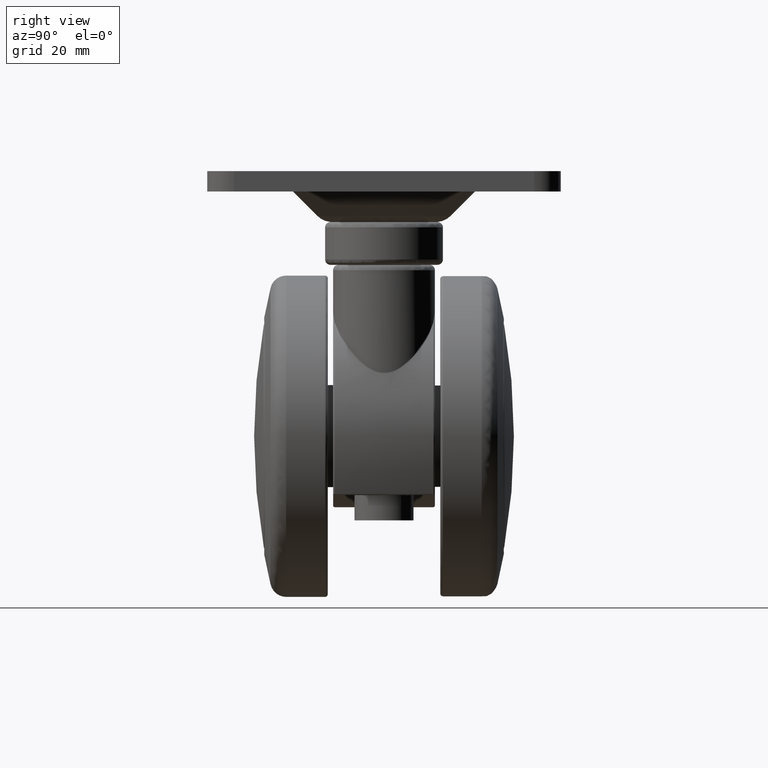
[diagram: clean part render]
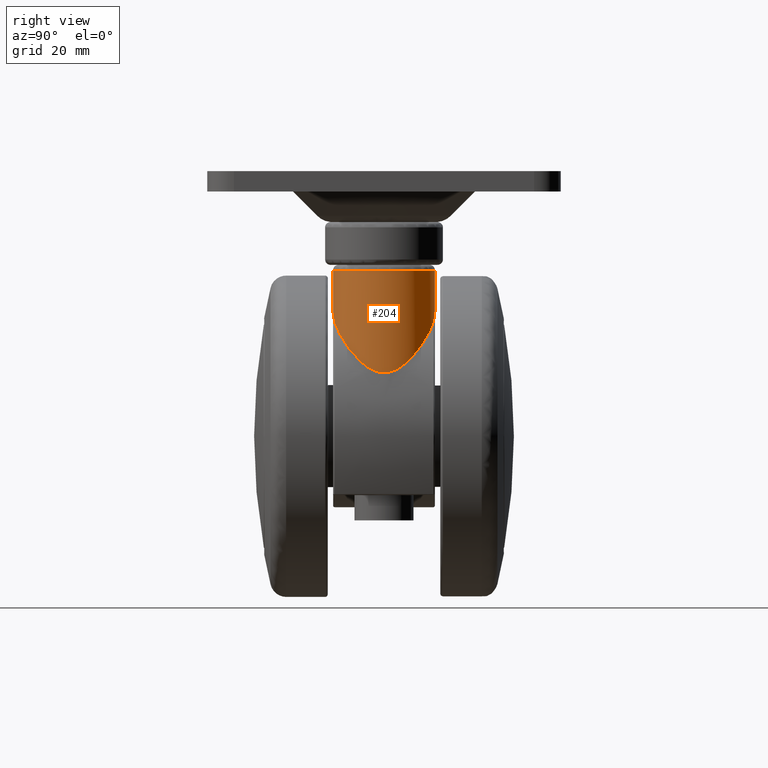
[diagram: same view with one face highlighted and labeled with its STEP entity id]
A machine part, right view. The second image highlights one B-rep face of the part: STEP entity #204.
In plain terms, the highlighted cylindrical surface (partial cylindrical patch) has radius 9.5 mm, axis along (-0, -0, -1).
Its self-contained STEP definition (entity closure, byte-faithful):
#204=ADVANCED_FACE('',(#518),#517,.T.);
#517=CYLINDRICAL_SURFACE('',#2778,9.50000000000E+00);
#518=FACE_OUTER_BOUND('',#2779,.T.);
#2775=CARTESIAN_POINT('',(1.70000000000E+01,-2.56500154905E-14,2.70616827011E+01));
#2776=DIRECTION('',(-0.00000000000E+00,-9.13012355777E-17,-1.00000000000E+00));
#2777=DIRECTION('',(-9.99961923064E-01,-8.72653549837E-03,7.96743473314E-19));
#2778=AXIS2_PLACEMENT_3D('',#2775,#2776,#2777);
#2779=EDGE_LOOP('',(#7466,#7467,#7468,#7469,#7470,#7471,#7472,#7473,#7474,#7475,#7476,#7477));
#7466=ORIENTED_EDGE('',*,*,#8530,.F.);
#7467=ORIENTED_EDGE('',*,*,#8531,.F.);
#7468=ORIENTED_EDGE('',*,*,#8532,.T.);
#7469=ORIENTED_EDGE('',*,*,#8533,.F.);
#7470=ORIENTED_EDGE('',*,*,#8534,.F.);
#7471=ORIENTED_EDGE('',*,*,#8535,.T.);
#7472=ORIENTED_EDGE('',*,*,#8536,.T.);
#7473=ORIENTED_EDGE('',*,*,#8537,.T.);
#7474=ORIENTED_EDGE('',*,*,#8538,.T.);
#7475=ORIENTED_EDGE('',*,*,#8539,.T.);
#7476=ORIENTED_EDGE('',*,*,#8540,.T.);
#7477=ORIENTED_EDGE('',*,*,#8541,.T.);
#8530=EDGE_CURVE('',#9263,#9416,#9417,.T.);
#8531=EDGE_CURVE('',#9423,#9263,#9424,.T.);
#8532=EDGE_CURVE('',#9423,#9430,#9431,.T.);
#8533=EDGE_CURVE('',#9326,#9430,#9437,.T.);
#8534=EDGE_CURVE('',#9443,#9326,#9444,.T.);
#8535=EDGE_CURVE('',#9443,#9450,#9451,.T.);
#8536=EDGE_CURVE('',#9450,#9457,#9458,.T.);
#8537=EDGE_CURVE('',#9457,#9464,#9465,.T.);
#8538=EDGE_CURVE('',#9464,#9471,#9472,.T.);
#8539=EDGE_CURVE('',#9471,#9478,#9479,.T.);
#8540=EDGE_CURVE('',#9478,#9485,#9486,.T.);
#8541=EDGE_CURVE('',#9485,#9416,#9492,.T.);
#9263=VERTEX_POINT('',#12734);
#9326=VERTEX_POINT('',#12780);
#9416=VERTEX_POINT('',#12843);
#9417=(BOUNDED_CURVE() B_SPLINE_CURVE(3,(#12844,#12845,#12846,#12847,#12848,#12849),.UNSPECIFIED.,.F.,.F.) B_SPLINE_CURVE_WITH_KNOTS((4,2,4),(1.85410191495E-02,1.99325494595E-02,2.13240797695E-02),.UNSPECIFIED.) CURVE() GEOMETRIC_REPRESENTATION_ITEM() RATIONAL_B_SPLINE_CURVE((1.00000000000E+00,1.00000000000E+00,1.00000000000E+00,1.00000000000E+00,1.00000000000E+00,1.00000000000E+00)) REPRESENTATION_ITEM('') );
#9423=VERTEX_POINT('',#12850);
#9424=(BOUNDED_CURVE() B_SPLINE_CURVE(3,(#12851,#12852,#12853,#12854,#12855,#12856),.UNSPECIFIED.,.F.,.F.) B_SPLINE_CURVE_WITH_KNOTS((4,2,4),(1.55602120176E-02,1.70506155835E-02,1.85410191495E-02),.UNSPECIFIED.) CURVE() GEOMETRIC_REPRESENTATION_ITEM() RATIONAL_B_SPLINE_CURVE((1.00000000000E+00,1.00000000000E+00,1.00000000000E+00,1.00000000000E+00,1.00000000000E+00,1.00000000000E+00)) REPRESENTATION_ITEM('') );
#9430=VERTEX_POINT('',#12857);
#9431=(BOUNDED_CURVE() B_SPLINE_CURVE(3,(#12858,#12859,#12860,#12861,#12862,#12863,#12864,#12865,#12866,#12867,#12868,#12869,#12870,#12871,#12872),.UNSPECIFIED.,.F.,.F.) B_SPLINE_CURVE_WITH_KNOTS((4,1,1,1,1,1,1,1,1,1,1,1,4),(0.00000000000E+00,1.83184714585E-01,2.44321908253E-01,3.35938578992E-01,4.54900953758E-01,4.84873936553E-01,5.44404035685E-01,5.74397896732E-01,6.04410284143E-01,6.64394900084E-01,7.55920894781E-01,8.17000712333E-01,1.00000000000E+00),.UNSPECIFIED.) CURVE() GEOMETRIC_REPRESENTATION_ITEM() RATIONAL_B_SPLINE_CURVE((1.00000000000E+00,1.00000000000E+00,1.00000000000E+00,1.00000000000E+00,1.00000000000E+00,1.00000000000E+00,1.00000000000E+00,1.00000000000E+00,1.00000000000E+00,1.00000000000E+00,1.00000000000E+00,1.00000000000E+00,1.00000000000E+00,1.00000000000E+00,1.00000000000E+00)) REPRESENTATION_ITEM('') );
#9437=(BOUNDED_CURVE() B_SPLINE_CURVE(3,(#12873,#12874,#12875,#12876,#12877,#12878),.UNSPECIFIED.,.F.,.F.) B_SPLINE_CURVE_WITH_KNOTS((4,2,4),(5.04585628728E-02,5.19390826639E-02,5.34196024549E-02),.UNSPECIFIED.) CURVE() GEOMETRIC_REPRESENTATION_ITEM() RATIONAL_B_SPLINE_CURVE((1.00000000000E+00,1.00000000000E+00,1.00000000000E+00,1.00000000000E+00,1.00000000000E+00,1.00000000000E+00)) REPRESENTATION_ITEM('') );
#9443=VERTEX_POINT('',#12879);
#9444=(BOUNDED_CURVE() B_SPLINE_CURVE(3,(#12880,#12881,#12882,#12883,#12884,#12885),.UNSPECIFIED.,.F.,.F.) B_SPLINE_CURVE_WITH_KNOTS((4,2,4),(4.76830021997E-02,4.90707825363E-02,5.04585628728E-02),.UNSPECIFIED.) CURVE() GEOMETRIC_REPRESENTATION_ITEM() RATIONAL_B_SPLINE_CURVE((1.00000000000E+00,1.00000000000E+00,1.00000000000E+00,1.00000000000E+00,1.00000000000E+00,1.00000000000E+00)) REPRESENTATION_ITEM('') );
#9450=VERTEX_POINT('',#12886);
#9451=(BOUNDED_CURVE() B_SPLINE_CURVE(3,(#12887,#12888,#12889,#12890,#12891,#12892,#12893,#12894,#12895,#12896,#12897,#12898,#12899,#12900,#12901,#12902,#12903,#12904,#12905,#12906,#12907,#12908,#12909,#12910,#12911,#12912,#12913,#12914,#12915,#12916,#12917,#12918,#12919,#12920,#12921,#12922,#12923,#12924),.UNSPECIFIED.,.F.,.F.) B_SPLINE_CURVE_WITH_KNOTS((4,2,2,1,1,1,1,2,2,2,1,1,1,1,1,2,2,2,1,1,1,1,1,2,2,4),(0.00000000000E+00,1.25000000000E-01,1.87500000000E-01,2.18750000000E-01,2.34375000000E-01,2.42187500000E-01,2.46093750000E-01,2.48046875000E-01,2.50000000000E-01,3.75000000000E-01,4.37500000000E-01,4.68750000000E-01,4.84375000000E-01,4.92187500000E-01,4.96093750000E-01,4.98046875000E-01,5.00000000000E-01,6.25000000000E-01,6.87500000000E-01,7.18750000000E-01,7.34375000000E-01,7.42187500000E-01,7.46093750000E-01,7.48046875000E-01,7.50000000000E-01,1.00000000000E+00),.UNSPECIFIED.) CURVE() GEOMETRIC_REPRESENTATION_ITEM() RATIONAL_B_SPLINE_CURVE((1.00000000000E+00,1.00000000000E+00,1.00000000000E+00,1.00000000000E+00,1.00000000000E+00,1.00000000000E+00,1.00000000000E+00,1.00000000000E+00,1.00000000000E+00,1.00000000000E+00,1.00000000000E+00,1.00000000000E+00,1.00000000000E+00,1.00000000000E+00,1.00000000000E+00,1.00000000000E+00,1.00000000000E+00,1.00000000000E+00,1.00000000000E+00,1.00000000000E+00,1.00000000000E+00,1.00000000000E+00,1.00000000000E+00,1.00000000000E+00,1.00000000000E+00,1.00000000000E+00,1.00000000000E+00,1.00000000000E+00,1.00000000000E+00,1.00000000000E+00,1.00000000000E+00,1.00000000000E+00,1.00000000000E+00,1.00000000000E+00,1.00000000000E+00,1.00000000000E+00,1.00000000000E+00,1.00000000000E+00)) REPRESENTATION_ITEM('') );
#9457=VERTEX_POINT('',#12925);
#9458=(BOUNDED_CURVE() B_SPLINE_CURVE(3,(#12926,#12927,#12928,#12929,#12930,#12931,#12932,#12933,#12934,#12935,#12936,#12937,#12938,#12939,#12940,#12941,#12942,#12943,#12944),.UNSPECIFIED.,.F.,.F.) B_SPLINE_CURVE_WITH_KNOTS((4,1,1,1,2,2,2,1,1,2,2,4),(0.00000000000E+00,1.25000000000E-01,1.87500000000E-01,2.18750000000E-01,2.34375000000E-01,2.50000000000E-01,3.75000000000E-01,4.37500000000E-01,4.68750000000E-01,4.84375000000E-01,5.00000000000E-01,1.00000000000E+00),.UNSPECIFIED.) CURVE() GEOMETRIC_REPRESENTATION_ITEM() RATIONAL_B_SPLINE_CURVE((1.00000000000E+00,1.00000000000E+00,1.00000000000E+00,1.00000000000E+00,1.00000000000E+00,1.00000000000E+00,1.00000000000E+00,1.00000000000E+00,1.00000000000E+00,1.00000000000E+00,1.00000000000E+00,1.00000000000E+00,1.00000000000E+00,1.00000000000E+00,1.00000000000E+00,1.00000000000E+00,1.00000000000E+00,1.00000000000E+00,1.00000000000E+00)) REPRESENTATION_ITEM('') );
#9464=VERTEX_POINT('',#12945);
#9465=CIRCLE('',#12949,9.50000000000E+00);
#9471=VERTEX_POINT('',#12950);
#9472=CIRCLE('',#12954,9.50000000000E+00);
#9478=VERTEX_POINT('',#12955);
#9479=CIRCLE('',#12959,9.50000000000E+00);
#9485=VERTEX_POINT('',#12960);
#9486=(BOUNDED_CURVE() B_SPLINE_CURVE(3,(#12961,#12962,#12963,#12964,#12965,#12966,#12967,#12968,#12969,#12970,#12971,#12972,#12973,#12974,#12975,#12976,#12977,#12978,#12979,#12980,#12981),.UNSPECIFIED.,.F.,.F.) B_SPLINE_CURVE_WITH_KNOTS((4,2,1,1,1,2,2,2,1,1,2,2,4),(0.00000000000E+00,2.50000000000E-01,3.75000000000E-01,4.37500000000E-01,4.68750000000E-01,4.84375000000E-01,5.00000000000E-01,6.25000000000E-01,6.87500000000E-01,7.18750000000E-01,7.34375000000E-01,7.50000000000E-01,1.00000000000E+00),.UNSPECIFIED.) CURVE() GEOMETRIC_REPRESENTATION_ITEM() RATIONAL_B_SPLINE_CURVE((1.00000000000E+00,1.00000000000E+00,1.00000000000E+00,1.00000000000E+00,1.00000000000E+00,1.00000000000E+00,1.00000000000E+00,1.00000000000E+00,1.00000000000E+00,1.00000000000E+00,1.00000000000E+00,1.00000000000E+00,1.00000000000E+00,1.00000000000E+00,1.00000000000E+00,1.00000000000E+00,1.00000000000E+00,1.00000000000E+00,1.00000000000E+00,1.00000000000E+00,1.00000000000E+00)) REPRESENTATION_ITEM('') );
#9492=(BOUNDED_CURVE() B_SPLINE_CURVE(3,(#12982,#12983,#12984,#12985,#12986,#12987,#12988,#12989,#12990,#12991,#12992,#12993,#12994,#12995,#12996,#12997,#12998,#12999,#13000,#13001,#13002,#13003,#13004,#13005,#13006,#13007,#13008,#13009,#13010,#13011,#13012,#13013,#13014,#13015,#13016,#13017,#13018),.UNSPECIFIED.,.F.,.F.) B_SPLINE_CURVE_WITH_KNOTS((4,2,1,1,1,1,1,2,2,2,1,1,1,1,1,2,2,2,1,1,1,1,1,2,2,4),(0.00000000000E+00,1.25000000000E-01,1.87500000000E-01,2.18750000000E-01,2.34375000000E-01,2.42187500000E-01,2.46093750000E-01,2.48046875000E-01,2.50000000000E-01,3.75000000000E-01,4.37500000000E-01,4.68750000000E-01,4.84375000000E-01,4.92187500000E-01,4.96093750000E-01,4.98046875000E-01,5.00000000000E-01,6.25000000000E-01,6.87500000000E-01,7.18750000000E-01,7.34375000000E-01,7.42187500000E-01,7.46093750000E-01,7.48046875000E-01,7.50000000000E-01,1.00000000000E+00),.UNSPECIFIED.) CURVE() GEOMETRIC_REPRESENTATION_ITEM() RATIONAL_B_SPLINE_CURVE((1.00000000000E+00,1.00000000000E+00,1.00000000000E+00,1.00000000000E+00,1.00000000000E+00,1.00000000000E+00,1.00000000000E+00,1.00000000000E+00,1.00000000000E+00,1.00000000000E+00,1.00000000000E+00,1.00000000000E+00,1.00000000000E+00,1.00000000000E+00,1.00000000000E+00,1.00000000000E+00,1.00000000000E+00,1.00000000000E+00,1.00000000000E+00,1.00000000000E+00,1.00000000000E+00,1.00000000000E+00,1.00000000000E+00,1.00000000000E+00,1.00000000000E+00,1.00000000000E+00,1.00000000000E+00,1.00000000000E+00,1.00000000000E+00,1.00000000000E+00,1.00000000000E+00,1.00000000000E+00,1.00000000000E+00,1.00000000000E+00,1.00000000000E+00,1.00000000000E+00,1.00000000000E+00)) REPRESENTATION_ITEM('') );
#12734=CARTESIAN_POINT('',(1.70000000000E+01,-9.50000000000E+00,2.31233648071E+01));
#12780=CARTESIAN_POINT('',(1.70000000000E+01,9.50000000000E+00,2.31233648071E+01));
#12843=CARTESIAN_POINT('',(1.47042601182E+01,-9.21843687375E+00,2.46674972519E+01));
#12844=CARTESIAN_POINT('',(1.70000000000E+01,-9.50000000000E+00,2.31233648071E+01));
#12845=CARTESIAN_POINT('',(1.66260372997E+01,-9.50000000000E+00,2.33982973680E+01));
#12846=CARTESIAN_POINT('',(1.62419498885E+01,-9.47759744620E+00,2.36682242055E+01));
#12847=CARTESIAN_POINT('',(1.54742690331E+01,-9.38464907922E+00,2.41840636702E+01));
#12848=CARTESIAN_POINT('',(1.50894141433E+01,-9.31435481168E+00,2.44310318834E+01));
#12849=CARTESIAN_POINT('',(1.47042601182E+01,-9.21843687375E+00,2.46674972519E+01));
#12850=CARTESIAN_POINT('',(1.92957398818E+01,-9.21843687374E+00,2.12691116108E+01));
#12851=CARTESIAN_POINT('',(1.92957398818E+01,-9.21843687374E+00,2.12691116108E+01));
#12852=CARTESIAN_POINT('',(1.89306681127E+01,-9.30935356942E+00,2.15927532113E+01));
#12853=CARTESIAN_POINT('',(1.85569617773E+01,-9.37947085625E+00,2.19090789421E+01));
#12854=CARTESIAN_POINT('',(1.77918933381E+01,-9.47478276586E+00,2.25271510162E+01));
#12855=CARTESIAN_POINT('',(1.74005341012E+01,-9.50000000000E+00,2.28288972943E+01));
#12856=CARTESIAN_POINT('',(1.70000000000E+01,-9.50000000000E+00,2.31233648071E+01));
#12857=CARTESIAN_POINT('',(1.92957398818E+01,9.21843687375E+00,2.12691116108E+01));
#12858=CARTESIAN_POINT('',(1.92957398818E+01,-9.21843687374E+00,2.12691116108E+01));
#12859=CARTESIAN_POINT('',(2.07863419570E+01,-8.84478098320E+00,2.00668855516E+01));
#12860=CARTESIAN_POINT('',(2.25158647636E+01,-7.91535654050E+00,1.82914118209E+01));
#12861=CARTESIAN_POINT('',(2.43350352385E+01,-6.12005961193E+00,1.57804078554E+01));
#12862=CARTESIAN_POINT('',(2.55466850272E+01,-4.40308375297E+00,1.38078722266E+01));
#12863=CARTESIAN_POINT('',(2.63128119639E+01,-2.34251366268E+00,1.22520018494E+01));
#12864=CARTESIAN_POINT('',(2.65366878281E+01,-1.70647641958E-01,1.17654709354E+01));
#12865=CARTESIAN_POINT('',(2.64657861015E+01,1.14284600422E+00,1.19227274646E+01));
#12866=CARTESIAN_POINT('',(2.62314098964E+01,2.29612834941E+00,1.24147993349E+01));
#12867=CARTESIAN_POINT('',(2.59145982316E+01,3.36124810382E+00,1.30514799957E+01));
#12868=CARTESIAN_POINT('',(2.52848920363E+01,4.77195046189E+00,1.42293899567E+01));
#12869=CARTESIAN_POINT('',(2.43302660761E+01,6.12644102102E+00,1.57887145962E+01));
#12870=CARTESIAN_POINT('',(2.25136404218E+01,7.91549271218E+00,1.82925043008E+01));
#12871=CARTESIAN_POINT('',(2.07850414708E+01,8.84550158688E+00,2.00693904718E+01));
#12872=CARTESIAN_POINT('',(1.92957398818E+01,9.21843687375E+00,2.12691116108E+01));
#12873=CARTESIAN_POINT('',(1.70000000000E+01,9.50000000000E+00,2.31233648071E+01));
#12874=CARTESIAN_POINT('',(1.73977006749E+01,9.50000000000E+00,2.28309803929E+01));
#12875=CARTESIAN_POINT('',(1.77880812825E+01,9.47512166810E+00,2.25301476413E+01));
#12876=CARTESIAN_POINT('',(1.85542098662E+01,9.37994852998E+00,2.19113844084E+01));
#12877=CARTESIAN_POINT('',(1.89316603679E+01,9.30910646030E+00,2.15918735622E+01));
#12878=CARTESIAN_POINT('',(1.92957398818E+01,9.21843687375E+00,2.12691116108E+01));
#12879=CARTESIAN_POINT('',(1.47042601182E+01,9.21843687375E+00,2.46674972519E+01));
#12880=CARTESIAN_POINT('',(1.47042601182E+01,9.21843687375E+00,2.46674972519E+01));
#12881=CARTESIAN_POINT('',(1.50899719350E+01,9.31449372295E+00,2.44306894271E+01));
#12882=CARTESIAN_POINT('',(1.54765473312E+01,9.38509659971E+00,2.41826168125E+01));
#12883=CARTESIAN_POINT('',(1.62479907542E+01,9.47815532234E+00,2.36640801300E+01));
#12884=CARTESIAN_POINT('',(1.66272112134E+01,9.50000000000E+00,2.33974343218E+01));
#12885=CARTESIAN_POINT('',(1.70000000000E+01,9.50000000000E+00,2.31233648071E+01));
#12886=CARTESIAN_POINT('',(1.07777613651E+01,7.17870088323E+00,3.03868759858E+01));
#12887=CARTESIAN_POINT('',(1.47042601182E+01,9.21843687375E+00,2.46674972519E+01));
#12888=CARTESIAN_POINT('',(1.46518133597E+01,9.20537564474E+00,2.47960329080E+01));
#12889=CARTESIAN_POINT('',(1.45557793505E+01,9.18131234498E+00,2.49869496605E+01));
#12890=CARTESIAN_POINT('',(1.43480404216E+01,9.12262506816E+00,2.53668964338E+01));
#12891=CARTESIAN_POINT('',(1.42681972934E+01,9.09924005622E+00,2.55091406322E+01));
#12892=CARTESIAN_POINT('',(1.41329564140E+01,9.05716787869E+00,2.57458998411E+01));
#12893=CARTESIAN_POINT('',(1.40614694796E+01,9.03437804620E+00,2.58701276733E+01));
#12894=CARTESIAN_POINT('',(1.39714238848E+01,9.00439282237E+00,2.60252945428E+01));
#12895=CARTESIAN_POINT('',(1.39247579286E+01,8.98850617605E+00,2.61054365772E+01));
#12896=CARTESIAN_POINT('',(1.39010164861E+01,8.98033365222E+00,2.61461472444E+01));
#12897=CARTESIAN_POINT('',(1.38907543114E+01,8.97678140710E+00,2.61637317409E+01));
#12898=CARTESIAN_POINT('',(1.38838934972E+01,8.97440212193E+00,2.61754851982E+01));
#12899=CARTESIAN_POINT('',(1.38796865737E+01,8.97293999711E+00,2.61826902444E+01));
#12900=CARTESIAN_POINT('',(1.37052965981E+01,8.91223793674E+00,2.64813067656E+01));
#12901=CARTESIAN_POINT('',(1.35402363355E+01,8.84926029064E+00,2.67593240130E+01));
#12902=CARTESIAN_POINT('',(1.33025368104E+01,8.75134898390E+00,2.71523421238E+01));
#12903=CARTESIAN_POINT('',(1.31861578989E+01,8.70153052397E+00,2.73428492392E+01));
#12904=CARTESIAN_POINT('',(1.30546711671E+01,8.64218142170E+00,2.75546041453E+01));
#12905=CARTESIAN_POINT('',(1.29899943630E+01,8.61223396473E+00,2.76578557498E+01));
#12906=CARTESIAN_POINT('',(1.29579218748E+01,8.59719622084E+00,2.77088250897E+01));
#12907=CARTESIAN_POINT('',(1.29419520146E+01,8.58966186698E+00,2.77341456441E+01));
#12908=CARTESIAN_POINT('',(1.29351220036E+01,8.58642959630E+00,2.77449621427E+01));
#12909=CARTESIAN_POINT('',(1.29305718206E+01,8.58427403050E+00,2.77521653267E+01));
#12910=CARTESIAN_POINT('',(1.29289994370E+01,8.58352871768E+00,2.77546539557E+01));
#12911=CARTESIAN_POINT('',(1.27357503139E+01,8.49179240191E+00,2.80603380696E+01));
#12912=CARTESIAN_POINT('',(1.25543511847E+01,8.39793254029E+00,2.83358730568E+01));
#12913=CARTESIAN_POINT('',(1.22952719192E+01,8.25380516915E+00,2.87110060962E+01));
#12914=CARTESIAN_POINT('',(1.21689842698E+01,8.18090426411E+00,2.88890302556E+01));
#12915=CARTESIAN_POINT('',(1.20272477449E+01,8.09478767565E+00,2.90800259776E+01));
#12916=CARTESIAN_POINT('',(1.19577660123E+01,8.05151067564E+00,2.91713490559E+01));
#12917=CARTESIAN_POINT('',(1.19233700881E+01,8.02982339544E+00,2.92159668994E+01));
#12918=CARTESIAN_POINT('',(1.19062581447E+01,8.01896828961E+00,2.92380148973E+01));
#12919=CARTESIAN_POINT('',(1.18989428638E+01,8.01431372219E+00,2.92474081269E+01));
#12920=CARTESIAN_POINT('',(1.18940700982E+01,8.01121015714E+00,2.92536578551E+01));
#12921=CARTESIAN_POINT('',(1.18923833711E+01,8.01013524249E+00,2.92558198403E+01));
#12922=CARTESIAN_POINT('',(1.14821753052E+01,7.74833925593E+00,2.97807344528E+01));
#12923=CARTESIAN_POINT('',(1.11121355478E+01,7.46852480956E+00,3.01563978988E+01));
#12924=CARTESIAN_POINT('',(1.07777613651E+01,7.17870088323E+00,3.03868759858E+01));
#12925=CARTESIAN_POINT('',(9.49713514473E+00,5.82726513586E+00,3.10000000000E+01));
#12926=CARTESIAN_POINT('',(1.07777613651E+01,7.17870088323E+00,3.03868759858E+01));
#12927=CARTESIAN_POINT('',(1.07203525105E+01,7.12894096160E+00,3.04264446427E+01));
#12928=CARTESIAN_POINT('',(1.06350863155E+01,7.05322616963E+00,3.04822437451E+01));
#12929=CARTESIAN_POINT('',(1.05371398199E+01,6.96304331543E+00,3.05411234027E+01));
#12930=CARTESIAN_POINT('',(1.04885552253E+01,6.91749381990E+00,3.05690084078E+01));
#12931=CARTESIAN_POINT('',(1.04678171769E+01,6.89787489954E+00,3.05806259476E+01));
#12932=CARTESIAN_POINT('',(1.04540105309E+01,6.88477395675E+00,3.05882969350E+01));
#12933=CARTESIAN_POINT('',(1.04461150372E+01,6.87725657830E+00,3.05926426057E+01));
#12934=CARTESIAN_POINT('',(1.03931677017E+01,6.82671228181E+00,3.06215709265E+01));
#12935=CARTESIAN_POINT('',(1.03420302381E+01,6.77698006555E+00,3.06473755240E+01));
#12936=CARTESIAN_POINT('',(1.02596771091E+01,6.69474064964E+00,3.06862182218E+01));
#12937=CARTESIAN_POINT('',(1.02170903266E+01,6.65170972453E+00,3.07056735211E+01));
#12938=CARTESIAN_POINT('',(1.01650557490E+01,6.59805794739E+00,3.07284307836E+01));
#12939=CARTESIAN_POINT('',(1.01422653871E+01,6.57431353754E+00,3.07381966276E+01));
#12940=CARTESIAN_POINT('',(1.01269645209E+01,6.55831577570E+00,3.07447100194E+01));
#12941=CARTESIAN_POINT('',(1.01181615365E+01,6.54907572416E+00,3.07484298974E+01));
#12942=CARTESIAN_POINT('',(9.89844651581E+00,6.31772581827E+00,3.08407558961E+01));
#12943=CARTESIAN_POINT('',(9.69294844828E+00,6.07938401254E+00,3.09236800111E+01));
#12944=CARTESIAN_POINT('',(9.49713514473E+00,5.82726513586E+00,3.10000000000E+01));
#12945=CARTESIAN_POINT('',(1.70000000000E+01,9.50000000000E+00,3.10000000000E+01));
#12946=CARTESIAN_POINT('',(1.70000000000E+01,-2.77555756156E-14,3.10000000000E+01));
#12947=DIRECTION('',(-4.42304488605E-17,-5.69486839111E-17,-1.00000000000E+00));
#12948=DIRECTION('',(-7.89775247923E-01,6.13396330091E-01,2.66734905112E-33));
#12949=AXIS2_PLACEMENT_3D('',#12946,#12947,#12948);
#12950=CARTESIAN_POINT('',(1.70000551354E+01,-9.49999999984E+00,3.10000000000E+01));
#12951=CARTESIAN_POINT('',(1.70000000000E+01,-2.77555756156E-14,3.10000000000E+01));
#12952=DIRECTION('',(-4.42304488605E-17,-5.69486839111E-17,-1.00000000000E+00));
#12953=DIRECTION('',(-7.89775247923E-01,6.13396330091E-01,2.66734905112E-33));
#12954=AXIS2_PLACEMENT_3D('',#12951,#12952,#12953);
#12955=CARTESIAN_POINT('',(9.49717036268E+00,-5.82731578961E+00,3.10000000000E+01));
#12956=CARTESIAN_POINT('',(1.70000000000E+01,-2.77555756156E-14,3.10000000000E+01));
#12957=DIRECTION('',(-4.42304488605E-17,-5.69486839111E-17,-1.00000000000E+00));
#12958=DIRECTION('',(-7.89775247923E-01,6.13396330091E-01,2.66734905112E-33));
#12959=AXIS2_PLACEMENT_3D('',#12956,#12957,#12958);
#12960=CARTESIAN_POINT('',(1.07751383099E+01,-7.17642647420E+00,3.03931568919E+01));
#12961=CARTESIAN_POINT('',(9.49717036268E+00,-5.82731578961E+00,3.10000000000E+01));
#12962=CARTESIAN_POINT('',(9.59441486571E+00,-5.95251385223E+00,3.09621144278E+01));
#12963=CARTESIAN_POINT('',(9.69406660713E+00,-6.07435153898E+00,3.09225707701E+01));
#12964=CARTESIAN_POINT('',(9.84683548818E+00,-6.25206684280E+00,3.08607681552E+01));
#12965=CARTESIAN_POINT('',(9.92404285691E+00,-6.33966459878E+00,3.08292450657E+01));
#12966=CARTESIAN_POINT('',(1.00154768928E+01,-6.43964661111E+00,3.07913800095E+01));
#12967=CARTESIAN_POINT('',(1.00615235395E+01,-6.48908276177E+00,3.07721754517E+01));
#12968=CARTESIAN_POINT('',(1.00813273759E+01,-6.51015068420E+00,3.07638866348E+01));
#12969=CARTESIAN_POINT('',(1.00945452720E+01,-6.52416951105E+00,3.07583478031E+01));
#12970=CARTESIAN_POINT('',(1.00997989270E+01,-6.52972892543E+00,3.07561443944E+01));
#12971=CARTESIAN_POINT('',(1.01716836280E+01,-6.60550645218E+00,3.07259507110E+01));
#12972=CARTESIAN_POINT('',(1.02313146755E+01,-6.66640239036E+00,3.06997760299E+01));
#12973=CARTESIAN_POINT('',(1.03136682267E+01,-6.74866452566E+00,3.06615102312E+01));
#12974=CARTESIAN_POINT('',(1.03530741421E+01,-6.78752394225E+00,3.06426263876E+01));
#12975=CARTESIAN_POINT('',(1.03958213397E+01,-6.82900423704E+00,3.06210310842E+01));
#12976=CARTESIAN_POINT('',(1.04134380340E+01,-6.84596713360E+00,3.06118693501E+01));
#12977=CARTESIAN_POINT('',(1.04250248411E+01,-6.85709604616E+00,3.06057822821E+01));
#12978=CARTESIAN_POINT('',(1.04295057230E+01,-6.86139163931E+00,3.06034109005E+01));
#12979=CARTESIAN_POINT('',(1.05462752359E+01,-6.97298690045E+00,3.05407734717E+01));
#12980=CARTESIAN_POINT('',(1.06592164910E+01,-7.07587537099E+00,3.04719171952E+01));
#12981=CARTESIAN_POINT('',(1.07751383099E+01,-7.17642647420E+00,3.03931568919E+01));
#12982=CARTESIAN_POINT('',(1.07751383099E+01,-7.17642647420E+00,3.03931568919E+01));
#12983=CARTESIAN_POINT('',(1.09422119848E+01,-7.32134686344E+00,3.02796556919E+01));
#12984=CARTESIAN_POINT('',(1.11182520197E+01,-7.46382108821E+00,3.01292894326E+01));
#12985=CARTESIAN_POINT('',(1.13961280077E+01,-7.67202807795E+00,2.98484424545E+01));
#12986=CARTESIAN_POINT('',(1.15385172933E+01,-7.77475297656E+00,2.96941945683E+01));
#12987=CARTESIAN_POINT('',(1.17107269168E+01,-7.89175893455E+00,2.94900460058E+01));
#12988=CARTESIAN_POINT('',(1.17983574935E+01,-7.94949672229E+00,2.93819235507E+01));
#12989=CARTESIAN_POINT('',(1.18425545861E+01,-7.97816736470E+00,2.93263502797E+01));
#12990=CARTESIAN_POINT('',(1.18647486198E+01,-7.99245224775E+00,2.92981856335E+01));
#12991=CARTESIAN_POINT('',(1.18742808134E+01,-7.99856343821E+00,2.92860340683E+01));
#12992=CARTESIAN_POINT('',(1.18806401573E+01,-8.00263513198E+00,2.92779150245E+01));
#12993=CARTESIAN_POINT('',(1.18845807210E+01,-8.00515420732E+00,2.92728750616E+01));
#12994=CARTESIAN_POINT('',(1.20422448814E+01,-8.10583682762E+00,2.90709797429E+01));
#12995=CARTESIAN_POINT('',(1.22058935057E+01,-8.20399086202E+00,2.88466055040E+01));
#12996=CARTESIAN_POINT('',(1.24644457006E+01,-8.34796250486E+00,2.84716666428E+01));
#12997=CARTESIAN_POINT('',(1.25969895379E+01,-8.41913053893E+00,2.82746028364E+01));
#12998=CARTESIAN_POINT('',(1.27574190341E+01,-8.50030640589E+00,2.80279049048E+01));
#12999=CARTESIAN_POINT('',(1.28390899430E+01,-8.54037589208E+00,2.79003583995E+01));
#13000=CARTESIAN_POINT('',(1.28802902895E+01,-8.56027407836E+00,2.78355357621E+01));
#13001=CARTESIAN_POINT('',(1.29009817843E+01,-8.57018815658E+00,2.78028620973E+01));
#13002=CARTESIAN_POINT('',(1.29098691469E+01,-8.57442944981E+00,2.77888028809E+01));
#13003=CARTESIAN_POINT('',(1.29157984072E+01,-8.57725527981E+00,2.77794175774E+01));
#13004=CARTESIAN_POINT('',(1.29194804207E+01,-8.57900729631E+00,2.77735852427E+01));
#13005=CARTESIAN_POINT('',(1.30659758253E+01,-8.64863919944E+00,2.75414242289E+01));
#13006=CARTESIAN_POINT('',(1.32174033576E+01,-8.71616145877E+00,2.72957116505E+01));
#13007=CARTESIAN_POINT('',(1.34555886893E+01,-8.81444980952E+00,2.69014578741E+01));
#13008=CARTESIAN_POINT('',(1.35774408297E+01,-8.86284305238E+00,2.66979097588E+01));
#13009=CARTESIAN_POINT('',(1.37244703076E+01,-8.91765049087E+00,2.64491998099E+01));
#13010=CARTESIAN_POINT('',(1.37992055766E+01,-8.94459754645E+00,2.63220355486E+01));
#13011=CARTESIAN_POINT('',(1.38368787109E+01,-8.95795138492E+00,2.62577510962E+01));
#13012=CARTESIAN_POINT('',(1.38557916931E+01,-8.96459768580E+00,2.62254332896E+01));
#13013=CARTESIAN_POINT('',(1.38639136355E+01,-8.96743946452E+00,2.62115451767E+01));
#13014=CARTESIAN_POINT('',(1.38693319039E+01,-8.96933250067E+00,2.62022780737E+01));
#13015=CARTESIAN_POINT('',(1.38712980675E+01,-8.97001881955E+00,2.61989147762E+01));
#13016=CARTESIAN_POINT('',(1.43173239845E+01,-9.12539785059E+00,2.54357060309E+01));
#13017=CARTESIAN_POINT('',(1.45988932938E+01,-9.19219654424E+00,2.49272056383E+01));
#13018=CARTESIAN_POINT('',(1.47042601182E+01,-9.21843687375E+00,2.46674972519E+01));